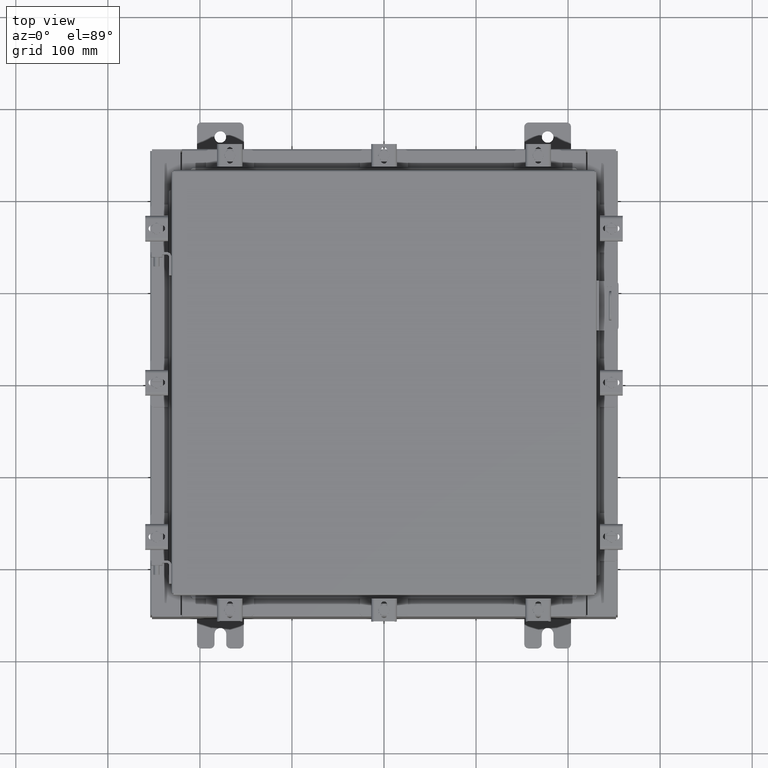
[diagram: clean part render]
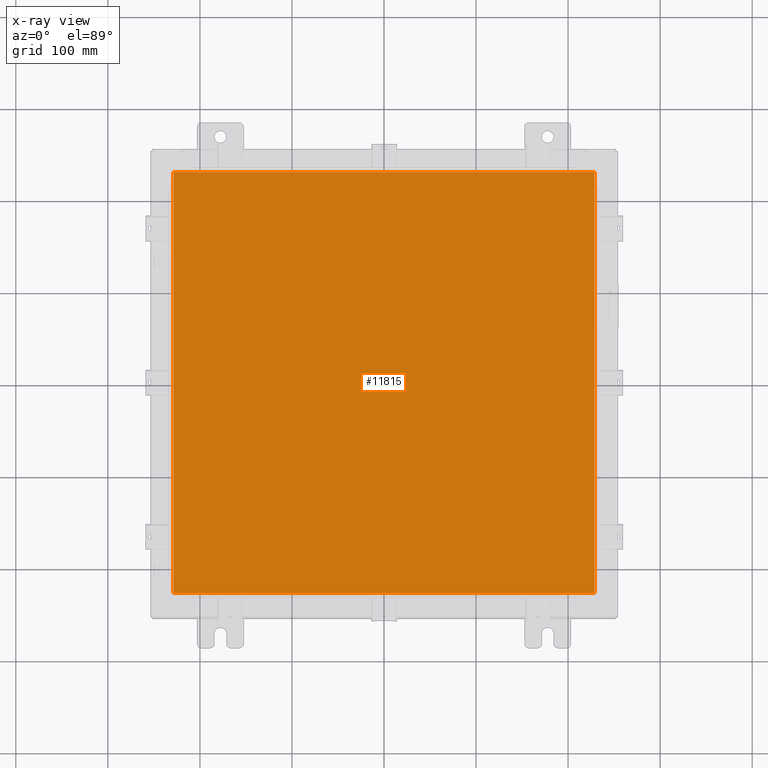
[diagram: x-ray — body ghosted, one internal face saturated and labeled with its STEP entity id]
A machine part, top view, then the same camera in x-ray: the body is ghosted and one INTERNAL B-rep face — a face not visible from any outside direction — is saturated and labeled: STEP entity #11815.
In plain terms, the highlighted planar face has unit normal (0, 0, -1).
Its self-contained STEP definition (entity closure, byte-faithful):
#65 = CARTESIAN_POINT ( 'NONE',  ( 9.006300000000001300, -9.006299999999999500, -0.07470000000000015500 ) ) ;
#117 = CARTESIAN_POINT ( 'NONE',  ( 9.006299999999999500, 9.006299999999999500, -0.07470000000000015500 ) ) ;
#254 = VERTEX_POINT ( 'NONE', #17894 ) ;
#1605 = DIRECTION ( 'NONE',  ( -1.000000000000000000, -0.0000000000000000000, -0.0000000000000000000 ) ) ;
#1776 = FACE_OUTER_BOUND ( 'NONE', #2386, .T. ) ;
#2173 = CARTESIAN_POINT ( 'NONE',  ( -9.006299999999997800, 9.006299999999997800, -0.07470000000000015500 ) ) ;
#2386 = EDGE_LOOP ( 'NONE', ( #3656, #4485, #12572, #4631 ) ) ;
#2726 = CARTESIAN_POINT ( 'NONE',  ( 9.006300000000001300, -9.006299999999999500, -0.07470000000000015500 ) ) ;
#3016 = EDGE_CURVE ( 'NONE', #254, #14397, #20887, .T. ) ;
#3408 = VERTEX_POINT ( 'NONE', #117 ) ;
#3599 = LINE ( 'NONE', #13792, #22156 ) ;
#3656 = ORIENTED_EDGE ( 'NONE', *, *, #14732, .F. ) ;
#3766 = DIRECTION ( 'NONE',  ( 0.0000000000000000000, 0.0000000000000000000, -1.000000000000000000 ) ) ;
#4485 = ORIENTED_EDGE ( 'NONE', *, *, #3016, .F. ) ;
#4631 = ORIENTED_EDGE ( 'NONE', *, *, #13580, .F. ) ;
#5324 = DIRECTION ( 'NONE',  ( 0.0000000000000000000, 1.000000000000000000, 0.0000000000000000000 ) ) ;
#6050 = CARTESIAN_POINT ( 'NONE',  ( -9.006299999999997800, 9.006299999999999500, -0.07470000000000125200 ) ) ;
#7551 = VECTOR ( 'NONE', #10550, 39.37007874015748100 ) ;
#8981 = PLANE ( 'NONE',  #10154 ) ;
#9568 = DIRECTION ( 'NONE',  ( 0.0000000000000000000, -1.000000000000000000, 0.0000000000000000000 ) ) ;
#10088 = EDGE_CURVE ( 'NONE', #14900, #254, #20668, .T. ) ;
#10154 = AXIS2_PLACEMENT_3D ( 'NONE', #19385, #3766, #15966 ) ;
#10550 = DIRECTION ( 'NONE',  ( 1.000000000000000000, -0.0000000000000000000, -0.0000000000000000000 ) ) ;
#11815 = ADVANCED_FACE ( 'NONE', ( #1776 ), #8981, .T. ) ;
#12572 = ORIENTED_EDGE ( 'NONE', *, *, #10088, .F. ) ;
#13280 = LINE ( 'NONE', #65, #17379 ) ;
#13580 = EDGE_CURVE ( 'NONE', #3408, #14900, #3599, .T. ) ;
#13792 = CARTESIAN_POINT ( 'NONE',  ( 9.006300000000001300, 9.006299999999999500, -0.07470000000000015500 ) ) ;
#14397 = VERTEX_POINT ( 'NONE', #2726 ) ;
#14732 = EDGE_CURVE ( 'NONE', #14397, #3408, #13280, .T. ) ;
#14900 = VERTEX_POINT ( 'NONE', #2173 ) ;
#15966 = DIRECTION ( 'NONE',  ( -1.000000000000000000, 0.0000000000000000000, -0.0000000000000000000 ) ) ;
#16036 = VECTOR ( 'NONE', #9568, 39.37007874015748100 ) ;
#17379 = VECTOR ( 'NONE', #5324, 39.37007874015748100 ) ;
#17894 = CARTESIAN_POINT ( 'NONE',  ( -9.006299999999997800, -9.006299999999999500, -0.07470000000000015500 ) ) ;
#19385 = CARTESIAN_POINT ( 'NONE',  ( 0.0000000000000000000, 0.0000000000000000000, -0.07470000000000015500 ) ) ;
#20668 = LINE ( 'NONE', #6050, #16036 ) ;
#20887 = LINE ( 'NONE', #20987, #7551 ) ;
#20987 = CARTESIAN_POINT ( 'NONE',  ( -9.006299999999997800, -9.006299999999999500, -0.07470000000000015500 ) ) ;
#22156 = VECTOR ( 'NONE', #1605, 39.37007874015748100 ) ;